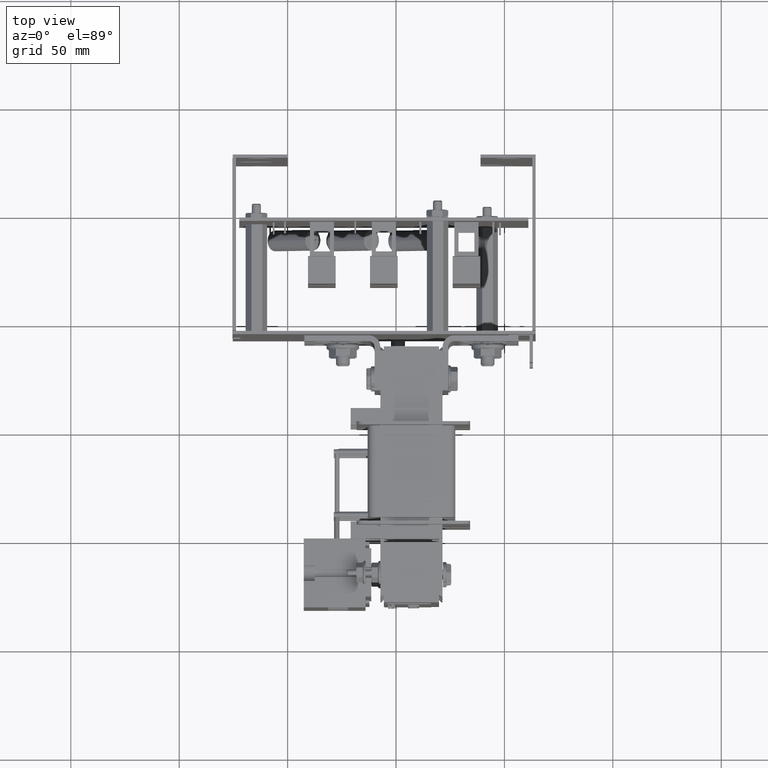
[diagram: clean part render]
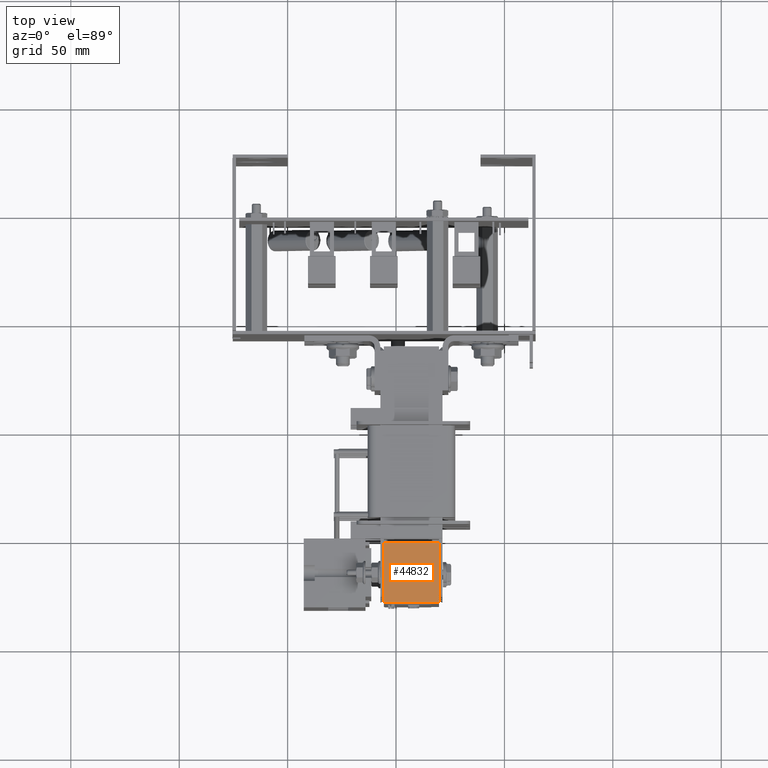
[diagram: same view with one face highlighted and labeled with its STEP entity id]
A machine part, top view. The second image highlights one B-rep face of the part: STEP entity #44832.
In plain terms, the highlighted planar face has unit normal (0, -0, 1).
Its self-contained STEP definition (entity closure, byte-faithful):
#1788=PLANE('',#48311);
#4644=FACE_OUTER_BOUND('',#7229,.T.);
#7229=EDGE_LOOP('',(#33417,#33418,#33419,#33420));
#10293=LINE('',#66034,#15028);
#10296=LINE('',#66040,#15031);
#10297=LINE('',#66042,#15032);
#10298=LINE('',#66043,#15033);
#15028=VECTOR('',#53597,0.393700787401575);
#15031=VECTOR('',#53602,0.393700787401575);
#15032=VECTOR('',#53603,0.393700787401575);
#15033=VECTOR('',#53604,0.393700787401575);
#21045=VERTEX_POINT('',#66031);
#21046=VERTEX_POINT('',#66033);
#21048=VERTEX_POINT('',#66039);
#21049=VERTEX_POINT('',#66041);
#25767=EDGE_CURVE('',#21046,#21045,#10293,.T.);
#25770=EDGE_CURVE('',#21045,#21048,#10296,.T.);
#25771=EDGE_CURVE('',#21049,#21048,#10297,.T.);
#25772=EDGE_CURVE('',#21046,#21049,#10298,.T.);
#33417=ORIENTED_EDGE('',*,*,#25770,.T.);
#33418=ORIENTED_EDGE('',*,*,#25771,.F.);
#33419=ORIENTED_EDGE('',*,*,#25772,.F.);
#33420=ORIENTED_EDGE('',*,*,#25767,.T.);
#44832=ADVANCED_FACE('',(#4644),#1788,.T.);
#48311=AXIS2_PLACEMENT_3D('',#66038,#53600,#53601);
#53597=DIRECTION('',(0.,0.,-1.));
#53600=DIRECTION('center_axis',(1.,1.2832166722533E-15,0.));
#53601=DIRECTION('ref_axis',(0.,0.,-1.));
#53602=DIRECTION('',(-1.2832166722533E-15,1.,0.));
#53603=DIRECTION('',(0.,0.,-1.));
#53604=DIRECTION('',(-1.2832166722533E-15,1.,0.));
#66031=CARTESIAN_POINT('',(4.00750885993742,2.89925944420803,-0.5));
#66033=CARTESIAN_POINT('',(4.00750885993742,2.89925944420803,0.5));
#66034=CARTESIAN_POINT('',(4.00750885993742,2.89925944420803,0.5));
#66038=CARTESIAN_POINT('Origin',(4.00750885993742,2.89925944420803,0.5));
#66039=CARTESIAN_POINT('',(4.00750885993742,3.98925944420804,-0.5));
#66040=CARTESIAN_POINT('',(4.00750885993742,2.89925944420803,-0.5));
#66041=CARTESIAN_POINT('',(4.00750885993742,3.98925944420804,0.5));
#66042=CARTESIAN_POINT('',(4.00750885993742,3.98925944420804,0.5));
#66043=CARTESIAN_POINT('',(4.00750885993742,2.89925944420803,0.5));